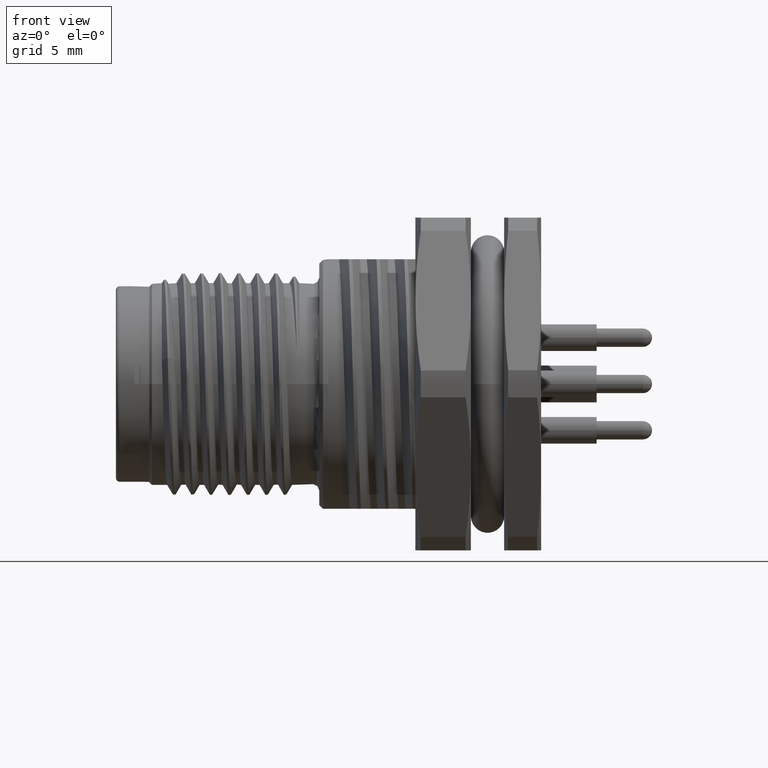
[diagram: clean part render]
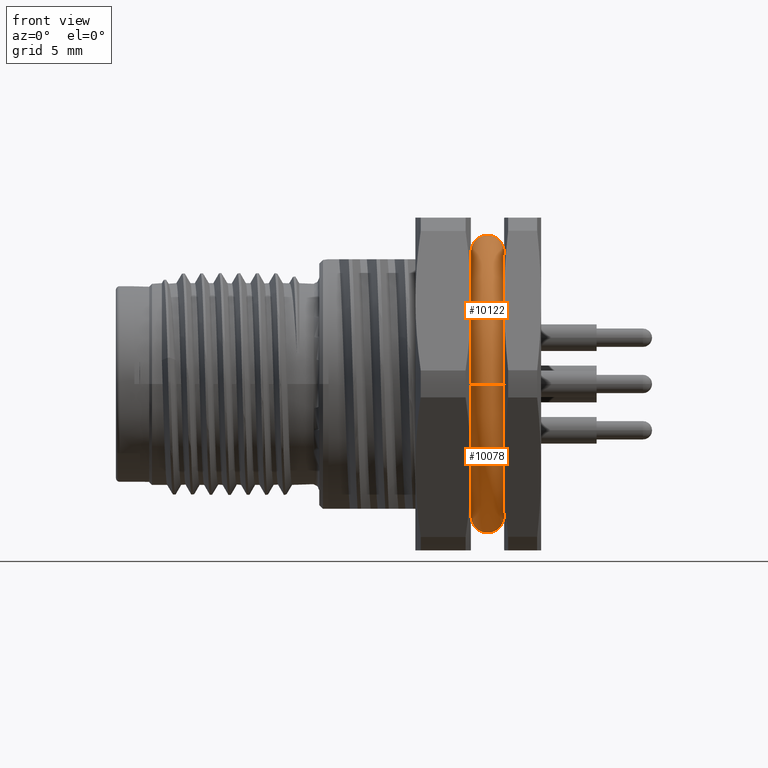
[diagram: same view with one multi-face feature highlighted, each face labeled with its STEP entity id]
A machine part, front view. The highlighted faces form ONE feature: a constant-radius fillet chain: 2 tangent blend faces with common blend radius 0.9 mm. The faces share edges in the B-rep.
Their STEP definitions:
[1] entity #10078 (Torus):
#1227=CARTESIAN_POINT('',(1.937949874371E1,2.390146859511E0,-6.941002512580E0));
#1228=CARTESIAN_POINT('',(1.938529706459E1,2.264965895490E0,-6.955870959925E0));
#1229=CARTESIAN_POINT('',(1.939365878052E1,2.009282287817E0,-6.984280268624E0));
#1230=CARTESIAN_POINT('',(1.939925471786E1,1.610191301214E0,-7.021270403465E0));
#1231=CARTESIAN_POINT('',(1.94E1,1.332978723004E0,-7.041333473125E0));
#1232=CARTESIAN_POINT('',(1.94E1,1.191638177538E0,-7.05E0));
#1238=CARTESIAN_POINT('',(1.94E1,-1.191638177538E0,-7.05E0));
#1239=CARTESIAN_POINT('',(1.94E1,-1.332975709347E0,-7.041333657912E0));
#1240=CARTESIAN_POINT('',(1.939925474321E1,-1.610184235856E0,
-7.021270949140E0));
#1241=CARTESIAN_POINT('',(1.939365901980E1,-2.009271732593E0,
-6.984281358464E0));
#1242=CARTESIAN_POINT('',(1.938529727436E1,-2.264961366722E0,
-6.955871497832E0));
#1243=CARTESIAN_POINT('',(1.937949874371E1,-2.390146859511E0,
-6.941002512580E0));
#1249=CARTESIAN_POINT('',(1.94E1,1.191638177538E0,-7.05E0));
#1250=CARTESIAN_POINT('',(1.94E1,1.093792610101E0,-7.028141567067E0));
#1251=CARTESIAN_POINT('',(1.939523487538E1,8.973142794674E-1,
-6.989207507105E0));
#1252=CARTESIAN_POINT('',(1.938279541400E1,5.992727677882E-1,
-6.947956635647E0));
#1253=CARTESIAN_POINT('',(1.937240712295E1,2.994464668695E-1,
-6.923988478896E0));
#1254=CARTESIAN_POINT('',(1.936849029006E1,-1.216062914402E-3,
-6.916224189577E0));
#1255=CARTESIAN_POINT('',(1.937246382952E1,-3.014437468358E-1,
-6.924106128268E0));
#1256=CARTESIAN_POINT('',(1.938284457149E1,-6.004052384102E-1,
-6.948098435124E0));
#1257=CARTESIAN_POINT('',(1.939524040001E1,-8.975637156334E-1,
-6.989262295405E0));
#1258=CARTESIAN_POINT('',(1.94E1,-1.093836259908E0,-7.028151318314E0));
#1259=CARTESIAN_POINT('',(1.94E1,-1.191638177538E0,-7.05E0));
#1265=CARTESIAN_POINT('',(1.76E1,0.E0,0.E0));
#1266=DIRECTION('',(-1.E0,0.E0,0.E0));
#1267=DIRECTION('',(0.E0,9.999995423458E-1,9.567174413220E-4));
#1268=AXIS2_PLACEMENT_3D('',#1265,#1266,#1267);
#1279=CARTESIAN_POINT('',(1.85E1,-7.149996727772E0,-6.840529705463E-3));
#1280=DIRECTION('',(0.E0,9.567174413235E-4,-9.999995423458E-1));
#1281=DIRECTION('',(9.772208263455E-1,-2.122249168490E-1,-2.030393723547E-4));
#1282=AXIS2_PLACEMENT_3D('',#1279,#1280,#1281);
#1284=CARTESIAN_POINT('',(1.85E1,7.149996727772E0,6.840529705451E-3));
#1285=DIRECTION('',(0.E0,9.567174413217E-4,-9.999995423458E-1));
#1286=DIRECTION('',(-1.E0,-1.549377909921E-13,0.E0));
#1287=AXIS2_PLACEMENT_3D('',#1284,#1285,#1286);
#1333=CARTESIAN_POINT('',(1.937949874371E1,0.E0,0.E0));
#1334=DIRECTION('',(-1.E0,0.E0,0.E0));
#1335=DIRECTION('',(0.E0,-3.255886175513E-1,-9.455115293432E-1));
#1336=AXIS2_PLACEMENT_3D('',#1333,#1334,#1335);
#1355=CARTESIAN_POINT('',(1.937949874371E1,0.E0,0.E0));
#1356=DIRECTION('',(-1.E0,0.E0,0.E0));
#1357=DIRECTION('',(0.E0,9.999995423458E-1,9.567174413221E-4));
#1358=AXIS2_PLACEMENT_3D('',#1355,#1356,#1357);
#1371=CARTESIAN_POINT('',(1.76E1,0.E0,0.E0));
#1372=DIRECTION('',(-1.E0,0.E0,0.E0));
#1373=DIRECTION('',(0.E0,-3.297853460854E-1,-9.440559440559E-1));
#1374=AXIS2_PLACEMENT_3D('',#1371,#1372,#1373);
#1412=CARTESIAN_POINT('',(1.76E1,-2.357965224510E0,-6.75E0));
#1413=CARTESIAN_POINT('',(1.76E1,-2.191928869E0,-6.75E0));
#1414=CARTESIAN_POINT('',(1.760991942793E1,-1.853865314089E0,-6.75E0));
#1415=CARTESIAN_POINT('',(1.764217369823E1,-1.317520925621E0,-6.75E0));
#1416=CARTESIAN_POINT('',(1.767481941441E1,-7.855119224726E-1,-6.75E0));
#1417=CARTESIAN_POINT('',(1.769457897706E1,-2.612129678179E-1,-6.75E0));
#1418=CARTESIAN_POINT('',(1.769456678305E1,2.619612679744E-1,-6.75E0));
#1419=CARTESIAN_POINT('',(1.767476520187E1,7.865678189809E-1,-6.75E0));
#1420=CARTESIAN_POINT('',(1.764209920349E1,1.318668339477E0,-6.75E0));
#1421=CARTESIAN_POINT('',(1.760991761231E1,1.854033927274E0,-6.75E0));
#1422=CARTESIAN_POINT('',(1.76E1,2.191966727054E0,-6.75E0));
#1423=CARTESIAN_POINT('',(1.76E1,2.357965224510E0,-6.75E0));
#9156=VERTEX_POINT('',#1227);
#9157=VERTEX_POINT('',#1232);
#9158=VERTEX_POINT('',#1238);
#9159=VERTEX_POINT('',#1243);
#9160=VERTEX_POINT('',#1412);
#9161=VERTEX_POINT('',#1423);
#9162=CARTESIAN_POINT('',(1.76E1,7.149996727772E0,6.840529705452E-3));
#9163=VERTEX_POINT('',#9162);
#9166=CARTESIAN_POINT('',(1.76E1,-7.149996727772E0,-6.840529705462E-3));
#9167=VERTEX_POINT('',#9166);
#9170=CARTESIAN_POINT('',(1.937949874371E1,7.340999152936E0,7.023265140572E-3));
#9171=VERTEX_POINT('',#9170);
#9177=CARTESIAN_POINT('',(1.937949874371E1,-7.340999152936E0,
-7.023265140583E-3));
#9178=VERTEX_POINT('',#9177);
#10054=CARTESIAN_POINT('',(1.85E1,0.E0,0.E0));
#10055=DIRECTION('',(-1.E0,0.E0,0.E0));
#10056=DIRECTION('',(0.E0,-9.999995423458E-1,-9.567174413234E-4));
#10057=AXIS2_PLACEMENT_3D('',#10054,#10055,#10056);
#10058=TOROIDAL_SURFACE('',#10057,7.15E0,9.E-1);
#10060=ORIENTED_EDGE('',*,*,#10059,.T.);
#10062=ORIENTED_EDGE('',*,*,#10061,.F.);
#10064=ORIENTED_EDGE('',*,*,#10063,.T.);
#10066=ORIENTED_EDGE('',*,*,#10065,.F.);
#10068=ORIENTED_EDGE('',*,*,#10067,.F.);
#10069=ORIENTED_EDGE('',*,*,#10035,.F.);
#10070=ORIENTED_EDGE('',*,*,#10048,.F.);
#10071=ORIENTED_EDGE('',*,*,#10022,.F.);
#10073=ORIENTED_EDGE('',*,*,#10072,.F.);
#10075=ORIENTED_EDGE('',*,*,#10074,.F.);
#10076=EDGE_LOOP('',(#10060,#10062,#10064,#10066,#10068,#10069,#10070,#10071,
#10073,#10075));
#10077=FACE_OUTER_BOUND('',#10076,.F.);
#10078=ADVANCED_FACE('',(#10077),#10058,.T.);
#1233=B_SPLINE_CURVE_WITH_KNOTS('',3,(#1227,#1228,#1229,#1230,#1231,#1232),
.UNSPECIFIED.,.F.,.F.,(4,1,1,4),(0.E0,3.333333333333E-1,6.666666666667E-1,1.E0),
.UNSPECIFIED.);
#1244=B_SPLINE_CURVE_WITH_KNOTS('',3,(#1238,#1239,#1240,#1241,#1242,#1243),
.UNSPECIFIED.,.F.,.F.,(4,1,1,4),(0.E0,3.333333333333E-1,6.666666666667E-1,1.E0),
.UNSPECIFIED.);
#1260=B_SPLINE_CURVE_WITH_KNOTS('',3,(#1249,#1250,#1251,#1252,#1253,#1254,#1255,
#1256,#1257,#1258,#1259),.UNSPECIFIED.,.F.,.F.,(4,1,1,1,1,1,1,1,4),(0.E0,
1.25E-1,2.5E-1,3.75E-1,5.E-1,6.25E-1,7.5E-1,8.75E-1,1.E0),.UNSPECIFIED.);
#1269=CIRCLE('',#1268,7.15E0);
#1283=CIRCLE('',#1282,9.E-1);
#1288=CIRCLE('',#1287,9.E-1);
#1337=CIRCLE('',#1336,7.341002512577E0);
#1359=CIRCLE('',#1358,7.341002512577E0);
#1375=CIRCLE('',#1374,7.15E0);
#1424=B_SPLINE_CURVE_WITH_KNOTS('',3,(#1412,#1413,#1414,#1415,#1416,#1417,#1418,
#1419,#1420,#1421,#1422,#1423),.UNSPECIFIED.,.F.,.F.,(4,1,1,1,1,1,1,1,1,4),
(0.E0,1.111111111111E-1,2.222222222222E-1,3.333333333333E-1,4.444444444444E-1,
5.555555555556E-1,6.666666666667E-1,7.777777777778E-1,8.888888888889E-1,1.E0),
.UNSPECIFIED.);
#10022=EDGE_CURVE('',#9156,#9157,#1233,.T.);
#10035=EDGE_CURVE('',#9158,#9159,#1244,.T.);
#10048=EDGE_CURVE('',#9157,#9158,#1260,.T.);
#10059=EDGE_CURVE('',#9163,#9161,#1269,.T.);
#10061=EDGE_CURVE('',#9160,#9161,#1424,.T.);
#10063=EDGE_CURVE('',#9160,#9167,#1375,.T.);
#10065=EDGE_CURVE('',#9178,#9167,#1283,.T.);
#10067=EDGE_CURVE('',#9159,#9178,#1337,.T.);
#10072=EDGE_CURVE('',#9171,#9156,#1359,.T.);
#10074=EDGE_CURVE('',#9163,#9171,#1288,.T.);
[2] entity #10122 (Torus):
#1270=CARTESIAN_POINT('',(1.76E1,0.E0,0.E0));
#1271=DIRECTION('',(-1.E0,0.E0,0.E0));
#1272=DIRECTION('',(0.E0,3.297853460854E-1,9.440559440559E-1));
#1273=AXIS2_PLACEMENT_3D('',#1270,#1271,#1272);
#1279=CARTESIAN_POINT('',(1.85E1,-7.149996727772E0,-6.840529705463E-3));
#1280=DIRECTION('',(0.E0,9.567174413235E-4,-9.999995423458E-1));
#1281=DIRECTION('',(9.772208263455E-1,-2.122249168490E-1,-2.030393723547E-4));
#1282=AXIS2_PLACEMENT_3D('',#1279,#1280,#1281);
#1284=CARTESIAN_POINT('',(1.85E1,7.149996727772E0,6.840529705451E-3));
#1285=DIRECTION('',(0.E0,9.567174413217E-4,-9.999995423458E-1));
#1286=DIRECTION('',(-1.E0,-1.549377909921E-13,0.E0));
#1287=AXIS2_PLACEMENT_3D('',#1284,#1285,#1286);
#1289=CARTESIAN_POINT('',(1.937949874371E1,-2.390146859511E0,6.941002512580E0));
#1290=CARTESIAN_POINT('',(1.938529706459E1,-2.264965895490E0,6.955870959925E0));
#1291=CARTESIAN_POINT('',(1.939365878052E1,-2.009282287817E0,6.984280268624E0));
#1292=CARTESIAN_POINT('',(1.939925471786E1,-1.610191301214E0,7.021270403465E0));
#1293=CARTESIAN_POINT('',(1.94E1,-1.332978723004E0,7.041333473125E0));
#1294=CARTESIAN_POINT('',(1.94E1,-1.191638177538E0,7.05E0));
#1300=CARTESIAN_POINT('',(1.94E1,1.191638177538E0,7.05E0));
#1301=CARTESIAN_POINT('',(1.94E1,1.332975709347E0,7.041333657912E0));
#1302=CARTESIAN_POINT('',(1.939925474321E1,1.610184235856E0,7.021270949140E0));
#1303=CARTESIAN_POINT('',(1.939365901980E1,2.009271732593E0,6.984281358464E0));
#1304=CARTESIAN_POINT('',(1.938529727436E1,2.264961366722E0,6.955871497832E0));
#1305=CARTESIAN_POINT('',(1.937949874371E1,2.390146859511E0,6.941002512580E0));
#1317=CARTESIAN_POINT('',(1.94E1,-1.191638177538E0,7.05E0));
#1318=CARTESIAN_POINT('',(1.94E1,-1.093792610101E0,7.028141567067E0));
#1319=CARTESIAN_POINT('',(1.939523487538E1,-8.973142794674E-1,
6.989207507105E0));
#1320=CARTESIAN_POINT('',(1.938279541400E1,-5.992727677882E-1,
6.947956635647E0));
#1321=CARTESIAN_POINT('',(1.937240712295E1,-2.994464668695E-1,
6.923988478896E0));
#1322=CARTESIAN_POINT('',(1.936849029006E1,1.216062914402E-3,6.916224189577E0));
#1323=CARTESIAN_POINT('',(1.937246382952E1,3.014437468358E-1,6.924106128268E0));
#1324=CARTESIAN_POINT('',(1.938284457149E1,6.004052384102E-1,6.948098435124E0));
#1325=CARTESIAN_POINT('',(1.939524040001E1,8.975637156334E-1,6.989262295405E0));
#1326=CARTESIAN_POINT('',(1.94E1,1.093836259908E0,7.028151318314E0));
#1327=CARTESIAN_POINT('',(1.94E1,1.191638177538E0,7.05E0));
#1338=CARTESIAN_POINT('',(1.937949874371E1,0.E0,0.E0));
#1339=DIRECTION('',(-1.E0,0.E0,0.E0));
#1340=DIRECTION('',(0.E0,-9.999995423458E-1,-9.567174413235E-4));
#1341=AXIS2_PLACEMENT_3D('',#1338,#1339,#1340);
#1366=CARTESIAN_POINT('',(1.937949874371E1,0.E0,0.E0));
#1367=DIRECTION('',(-1.E0,0.E0,0.E0));
#1368=DIRECTION('',(0.E0,3.255886175513E-1,9.455115293432E-1));
#1369=AXIS2_PLACEMENT_3D('',#1366,#1367,#1368);
#1380=CARTESIAN_POINT('',(1.76E1,0.E0,0.E0));
#1381=DIRECTION('',(-1.E0,0.E0,0.E0));
#1382=DIRECTION('',(0.E0,-9.999995423458E-1,-9.567174413233E-4));
#1383=AXIS2_PLACEMENT_3D('',#1380,#1381,#1382);
#1990=CARTESIAN_POINT('',(1.76E1,2.357965224510E0,6.75E0));
#1991=CARTESIAN_POINT('',(1.76E1,2.191928869E0,6.75E0));
#1992=CARTESIAN_POINT('',(1.760991942793E1,1.853865314089E0,6.75E0));
#1993=CARTESIAN_POINT('',(1.764217369823E1,1.317520925621E0,6.75E0));
#1994=CARTESIAN_POINT('',(1.767481941441E1,7.855119224726E-1,6.75E0));
#1995=CARTESIAN_POINT('',(1.769457897706E1,2.612129678179E-1,6.75E0));
#1996=CARTESIAN_POINT('',(1.769456678305E1,-2.619612679744E-1,6.75E0));
#1997=CARTESIAN_POINT('',(1.767476520187E1,-7.865678189809E-1,6.75E0));
#1998=CARTESIAN_POINT('',(1.764209920349E1,-1.318668339477E0,6.75E0));
#1999=CARTESIAN_POINT('',(1.760991761231E1,-1.854033927274E0,6.75E0));
#2000=CARTESIAN_POINT('',(1.76E1,-2.191966727054E0,6.75E0));
#2001=CARTESIAN_POINT('',(1.76E1,-2.357965224510E0,6.75E0));
#9162=CARTESIAN_POINT('',(1.76E1,7.149996727772E0,6.840529705452E-3));
#9163=VERTEX_POINT('',#9162);
#9164=CARTESIAN_POINT('',(1.76E1,2.357965224510E0,6.75E0));
#9165=VERTEX_POINT('',#9164);
#9166=CARTESIAN_POINT('',(1.76E1,-7.149996727772E0,-6.840529705462E-3));
#9167=VERTEX_POINT('',#9166);
#9168=CARTESIAN_POINT('',(1.76E1,-2.357965224510E0,6.75E0));
#9169=VERTEX_POINT('',#9168);
#9170=CARTESIAN_POINT('',(1.937949874371E1,7.340999152936E0,7.023265140572E-3));
#9171=VERTEX_POINT('',#9170);
#9172=CARTESIAN_POINT('',(1.937949874371E1,2.390146859511E0,6.941002512580E0));
#9173=VERTEX_POINT('',#9172);
#9174=VERTEX_POINT('',#1289);
#9175=VERTEX_POINT('',#1294);
#9176=VERTEX_POINT('',#1300);
#9177=CARTESIAN_POINT('',(1.937949874371E1,-7.340999152936E0,
-7.023265140583E-3));
#9178=VERTEX_POINT('',#9177);
#10098=CARTESIAN_POINT('',(1.85E1,0.E0,0.E0));
#10099=DIRECTION('',(-1.E0,0.E0,0.E0));
#10100=DIRECTION('',(0.E0,-9.999995423458E-1,-9.567174413234E-4));
#10101=AXIS2_PLACEMENT_3D('',#10098,#10099,#10100);
#10102=TOROIDAL_SURFACE('',#10101,7.15E0,9.E-1);
#10104=ORIENTED_EDGE('',*,*,#10103,.F.);
#10106=ORIENTED_EDGE('',*,*,#10105,.F.);
#10108=ORIENTED_EDGE('',*,*,#10107,.F.);
#10110=ORIENTED_EDGE('',*,*,#10109,.F.);
#10111=ORIENTED_EDGE('',*,*,#10065,.T.);
#10113=ORIENTED_EDGE('',*,*,#10112,.T.);
#10115=ORIENTED_EDGE('',*,*,#10114,.F.);
#10116=ORIENTED_EDGE('',*,*,#10085,.T.);
#10117=ORIENTED_EDGE('',*,*,#10074,.T.);
#10119=ORIENTED_EDGE('',*,*,#10118,.F.);
#10120=EDGE_LOOP('',(#10104,#10106,#10108,#10110,#10111,#10113,#10115,#10116,
#10117,#10119));
#10121=FACE_OUTER_BOUND('',#10120,.F.);
#10122=ADVANCED_FACE('',(#10121),#10102,.T.);
#1274=CIRCLE('',#1273,7.15E0);
#1283=CIRCLE('',#1282,9.E-1);
#1288=CIRCLE('',#1287,9.E-1);
#1295=B_SPLINE_CURVE_WITH_KNOTS('',3,(#1289,#1290,#1291,#1292,#1293,#1294),
.UNSPECIFIED.,.F.,.F.,(4,1,1,4),(0.E0,3.333333333333E-1,6.666666666667E-1,1.E0),
.UNSPECIFIED.);
#1306=B_SPLINE_CURVE_WITH_KNOTS('',3,(#1300,#1301,#1302,#1303,#1304,#1305),
.UNSPECIFIED.,.F.,.F.,(4,1,1,4),(0.E0,3.333333333333E-1,6.666666666667E-1,1.E0),
.UNSPECIFIED.);
#1328=B_SPLINE_CURVE_WITH_KNOTS('',3,(#1317,#1318,#1319,#1320,#1321,#1322,#1323,
#1324,#1325,#1326,#1327),.UNSPECIFIED.,.F.,.F.,(4,1,1,1,1,1,1,1,4),(0.E0,
1.25E-1,2.5E-1,3.75E-1,5.E-1,6.25E-1,7.5E-1,8.75E-1,1.E0),.UNSPECIFIED.);
#1342=CIRCLE('',#1341,7.341002512577E0);
#1370=CIRCLE('',#1369,7.341002512577E0);
#1384=CIRCLE('',#1383,7.15E0);
#2002=B_SPLINE_CURVE_WITH_KNOTS('',3,(#1990,#1991,#1992,#1993,#1994,#1995,#1996,
#1997,#1998,#1999,#2000,#2001),.UNSPECIFIED.,.F.,.F.,(4,1,1,1,1,1,1,1,1,4),
(0.E0,1.111111111111E-1,2.222222222222E-1,3.333333333333E-1,4.444444444444E-1,
5.555555555556E-1,6.666666666667E-1,7.777777777778E-1,8.888888888889E-1,1.E0),
.UNSPECIFIED.);
#10065=EDGE_CURVE('',#9178,#9167,#1283,.T.);
#10074=EDGE_CURVE('',#9163,#9171,#1288,.T.);
#10085=EDGE_CURVE('',#9165,#9163,#1274,.T.);
#10103=EDGE_CURVE('',#9176,#9173,#1306,.T.);
#10105=EDGE_CURVE('',#9175,#9176,#1328,.T.);
#10107=EDGE_CURVE('',#9174,#9175,#1295,.T.);
#10109=EDGE_CURVE('',#9178,#9174,#1342,.T.);
#10112=EDGE_CURVE('',#9167,#9169,#1384,.T.);
#10114=EDGE_CURVE('',#9165,#9169,#2002,.T.);
#10118=EDGE_CURVE('',#9173,#9171,#1370,.T.);